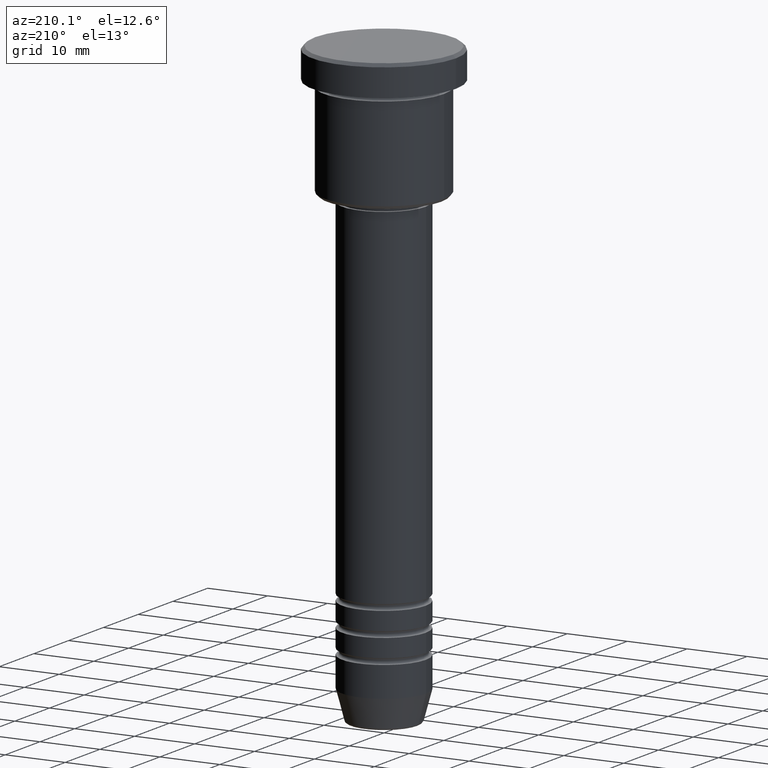
[diagram: clean part render]
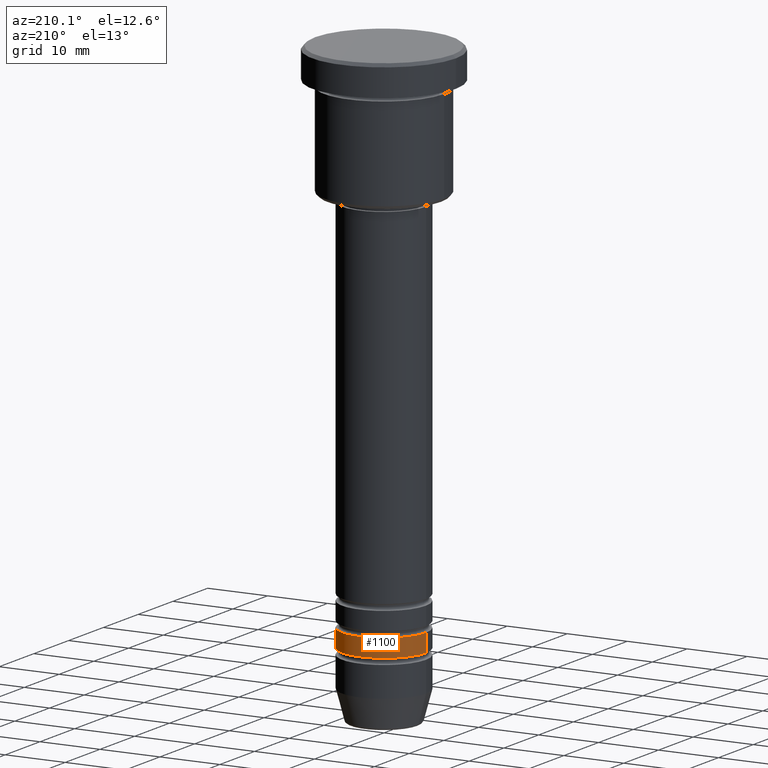
[diagram: same view with one face highlighted and labeled with its STEP entity id]
A machine part, auxiliary view. The second image highlights one B-rep face of the part: STEP entity #1100.
In plain terms, the highlighted cylindrical surface (partial cylindrical patch) has radius 7 mm, axis along (-0, -0, 1).
Its self-contained STEP definition (entity closure, byte-faithful):
#15 = ORIENTED_EDGE ( 'NONE', *, *, #216, .T. ) ;
#38 = DIRECTION ( 'NONE',  ( -0.000000000000000000, -0.000000000000000000, 1.000000000000000000 ) ) ;
#75 = DIRECTION ( 'NONE',  ( -0.000000000000000000, -0.000000000000000000, 1.000000000000000000 ) ) ;
#93 = CARTESIAN_POINT ( 'NONE',  ( -7.000000000000000888, 8.572527594031474176E-16, 0.000000000000000000 ) ) ;
#100 = LINE ( 'NONE', #93, #675 ) ;
#131 = DIRECTION ( 'NONE',  ( -0.000000000000000000, -0.000000000000000000, 1.000000000000000000 ) ) ;
#191 = ORIENTED_EDGE ( 'NONE', *, *, #1157, .F. ) ;
#216 = EDGE_CURVE ( 'NONE', #383, #435, #100, .T. ) ;
#272 = CARTESIAN_POINT ( 'NONE',  ( 7.000000000000000888, 0.000000000000000000, 0.000000000000000000 ) ) ;
#289 = DIRECTION ( 'NONE',  ( -0.000000000000000000, -0.000000000000000000, 1.000000000000000000 ) ) ;
#303 = AXIS2_PLACEMENT_3D ( 'NONE', #1067, #738, #908 ) ;
#342 = EDGE_CURVE ( 'NONE', #528, #383, #997, .T. ) ;
#383 = VERTEX_POINT ( 'NONE', #843 ) ;
#398 = CARTESIAN_POINT ( 'NONE',  ( 0.000000000000000000, 0.000000000000000000, -88.99999999999998579 ) ) ;
#402 = EDGE_CURVE ( 'NONE', #1027, #435, #1147, .T. ) ;
#435 = VERTEX_POINT ( 'NONE', #780 ) ;
#467 = VECTOR ( 'NONE', #75, 1000.000000000000000 ) ;
#483 = AXIS2_PLACEMENT_3D ( 'NONE', #848, #38, #1040 ) ;
#528 = VERTEX_POINT ( 'NONE', #700 ) ;
#626 = LINE ( 'NONE', #272, #467 ) ;
#669 = EDGE_LOOP ( 'NONE', ( #863, #15, #761, #191 ) ) ;
#675 = VECTOR ( 'NONE', #289, 1000.000000000000000 ) ;
#700 = CARTESIAN_POINT ( 'NONE',  ( 7.000000000000000888, 0.000000000000000000, -88.99999999999998579 ) ) ;
#709 = CYLINDRICAL_SURFACE ( 'NONE', #303, 7.000000000000000888 ) ;
#738 = DIRECTION ( 'NONE',  ( -0.000000000000000000, -0.000000000000000000, 1.000000000000000000 ) ) ;
#761 = ORIENTED_EDGE ( 'NONE', *, *, #402, .F. ) ;
#780 = CARTESIAN_POINT ( 'NONE',  ( -7.000000000000000000, 8.572527594031473190E-16, -86.00000000000000000 ) ) ;
#786 = CARTESIAN_POINT ( 'NONE',  ( 7.000000000000000000, 0.000000000000000000, -86.00000000000000000 ) ) ;
#843 = CARTESIAN_POINT ( 'NONE',  ( -7.000000000000000888, 8.572527594031474176E-16, -88.99999999999998579 ) ) ;
#848 = CARTESIAN_POINT ( 'NONE',  ( 0.000000000000000000, 0.000000000000000000, -86.00000000000000000 ) ) ;
#863 = ORIENTED_EDGE ( 'NONE', *, *, #342, .T. ) ;
#908 = DIRECTION ( 'NONE',  ( 1.000000000000000000, 0.000000000000000000, 0.000000000000000000 ) ) ;
#997 = CIRCLE ( 'NONE', #1093, 7.000000000000000888 ) ;
#1023 = DIRECTION ( 'NONE',  ( 1.000000000000000000, 0.000000000000000000, 0.000000000000000000 ) ) ;
#1027 = VERTEX_POINT ( 'NONE', #786 ) ;
#1040 = DIRECTION ( 'NONE',  ( 1.000000000000000000, 0.000000000000000000, 0.000000000000000000 ) ) ;
#1067 = CARTESIAN_POINT ( 'NONE',  ( 0.000000000000000000, 0.000000000000000000, 0.000000000000000000 ) ) ;
#1093 = AXIS2_PLACEMENT_3D ( 'NONE', #398, #131, #1023 ) ;
#1100 = ADVANCED_FACE ( 'NONE', ( #1172 ), #709, .T. ) ;
#1147 = CIRCLE ( 'NONE', #483, 7.000000000000000000 ) ;
#1157 = EDGE_CURVE ( 'NONE', #528, #1027, #626, .T. ) ;
#1172 = FACE_OUTER_BOUND ( 'NONE', #669, .T. ) ;